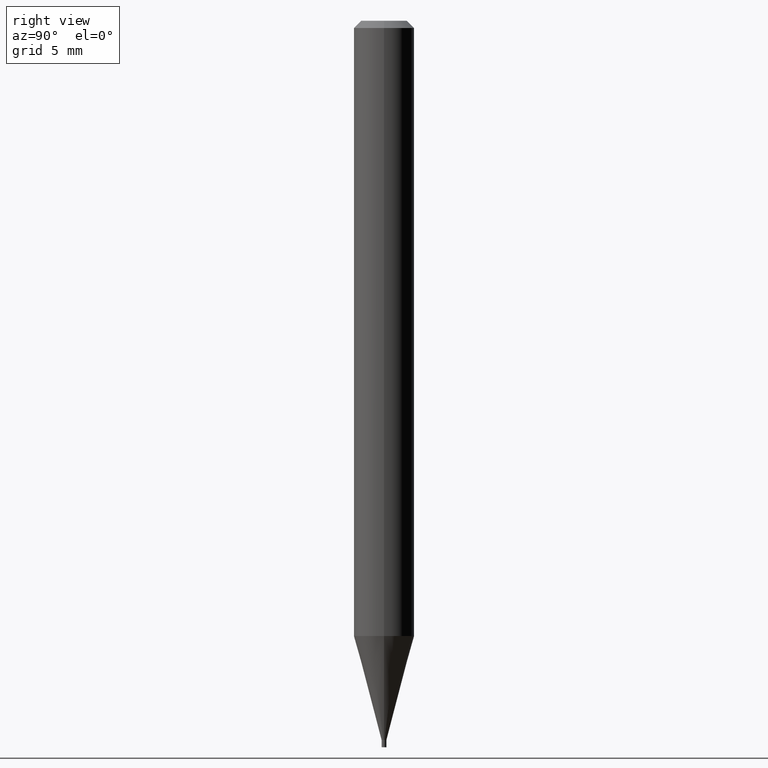
[diagram: clean part render]
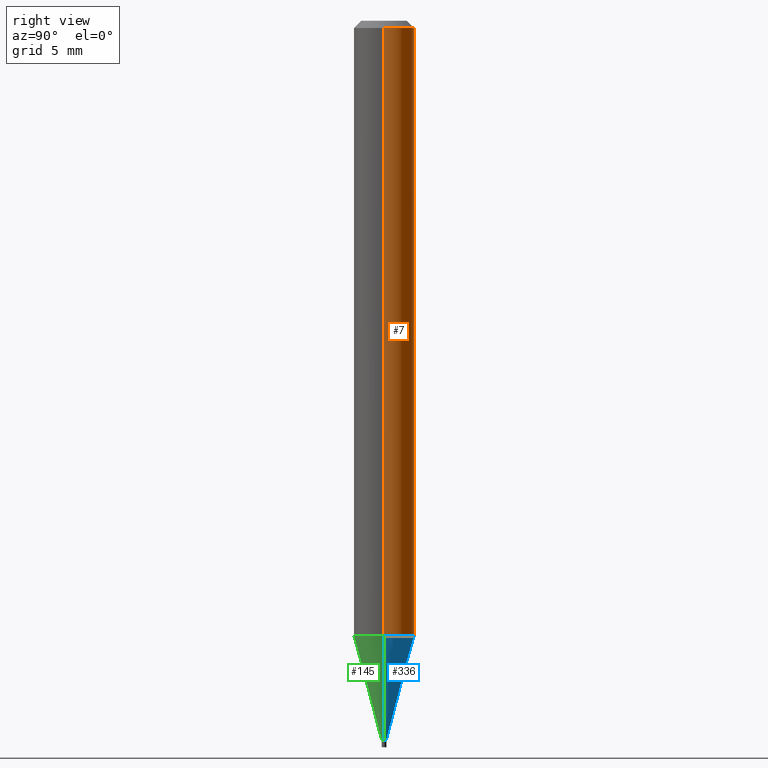
[diagram: same view with three faces highlighted in distinct colors, each labeled with its STEP entity id]
A machine part, right view with three faces highlighted in distinct colors.
Their STEP definitions:

[orange] entity #7 — the highlighted cylindrical surface (edge-blend (fillet) strip) has radius 1.5875 mm, axis along (-0, 0, 1).
#6 = VECTOR ( 'NONE', #371, 39.37007874015748143 ) ;
#7 = ADVANCED_FACE ( 'NONE', ( #281 ), #315, .T. ) ;
#8 = VERTEX_POINT ( 'NONE', #418 ) ;
#24 = AXIS2_PLACEMENT_3D ( 'NONE', #395, #402, #77 ) ;
#46 = CIRCLE ( 'NONE', #369, 0.06250000000000000000 ) ;
#49 = ORIENTED_EDGE ( 'NONE', *, *, #185, .F. ) ;
#66 = CARTESIAN_POINT ( 'NONE',  ( 0.000000000000000000, 0.000000000000000000, 0.000000000000000000 ) ) ;
#77 = DIRECTION ( 'NONE',  ( 1.000000000000000000, -6.982962677686266711E-15, 0.000000000000000000 ) ) ;
#86 = VERTEX_POINT ( 'NONE', #245 ) ;
#146 = EDGE_CURVE ( 'NONE', #179, #8, #267, .T. ) ;
#153 = CARTESIAN_POINT ( 'NONE',  ( 3.106740881786981637E-29, -4.435602607543199263E-15, -1.270407078564789183 ) ) ;
#164 = CARTESIAN_POINT ( 'NONE',  ( -0.06250000000000000000, 4.440892098500626162E-16, -3.074334431409316114E-30 ) ) ;
#167 = ORIENTED_EDGE ( 'NONE', *, *, #368, .F. ) ;
#178 = CIRCLE ( 'NONE', #24, 0.06250000000000000000 ) ;
#179 = VERTEX_POINT ( 'NONE', #251 ) ;
#185 = EDGE_CURVE ( 'NONE', #86, #8, #178, .T. ) ;
#197 = EDGE_CURVE ( 'NONE', #300, #179, #46, .T. ) ;
#216 = DIRECTION ( 'NONE',  ( 1.000000000000000000, -6.982962677686266711E-15, 4.876176775795935793E-29 ) ) ;
#226 = ORIENTED_EDGE ( 'NONE', *, *, #146, .T. ) ;
#245 = CARTESIAN_POINT ( 'NONE',  ( 0.06250000000000000000, -4.888073874380388472E-16, -0.01499999999999999944 ) ) ;
#251 = CARTESIAN_POINT ( 'NONE',  ( -0.06249999999999999306, -3.991513397693135858E-15, -1.270407078564789183 ) ) ;
#259 = AXIS2_PLACEMENT_3D ( 'NONE', #66, #455, #216 ) ;
#267 = LINE ( 'NONE', #164, #6 ) ;
#281 = FACE_OUTER_BOUND ( 'NONE', #298, .T. ) ;
#295 = DIRECTION ( 'NONE',  ( -2.445468806185136597E-29, 3.491481338843145583E-15, 1.000000000000000000 ) ) ;
#298 = EDGE_LOOP ( 'NONE', ( #404, #226, #49, #167 ) ) ;
#300 = VERTEX_POINT ( 'NONE', #339 ) ;
#315 = CYLINDRICAL_SURFACE ( 'NONE', #259, 0.06250000000000000000 ) ;
#319 = LINE ( 'NONE', #459, #374 ) ;
#339 = CARTESIAN_POINT ( 'NONE',  ( 0.06249999999999999306, -4.872037774898590932E-15, -1.270407078564789183 ) ) ;
#368 = EDGE_CURVE ( 'NONE', #300, #86, #319, .T. ) ;
#369 = AXIS2_PLACEMENT_3D ( 'NONE', #153, #295, #435 ) ;
#371 = DIRECTION ( 'NONE',  ( -2.445468806185136877E-29, 3.491481338843145188E-15, 1.000000000000000000 ) ) ;
#374 = VECTOR ( 'NONE', #416, 39.37007874015748143 ) ;
#395 = CARTESIAN_POINT ( 'NONE',  ( 3.668203209277705088E-31, -5.237222008264718399E-17, -0.01499999999999999944 ) ) ;
#402 = DIRECTION ( 'NONE',  ( -2.445468806185136597E-29, 3.491481338843145583E-15, 1.000000000000000000 ) ) ;
#404 = ORIENTED_EDGE ( 'NONE', *, *, #197, .T. ) ;
#416 = DIRECTION ( 'NONE',  ( -2.445468806185136877E-29, 3.491481338843145188E-15, 1.000000000000000000 ) ) ;
#418 = CARTESIAN_POINT ( 'NONE',  ( -0.06250000000000000000, -1.799898203962860752E-15, -0.01499999999999999944 ) ) ;
#435 = DIRECTION ( 'NONE',  ( 1.000000000000000000, -6.982962677686262766E-15, 0.000000000000000000 ) ) ;
#455 = DIRECTION ( 'NONE',  ( -2.445468806185136597E-29, 3.491481338843145583E-15, 1.000000000000000000 ) ) ;
#459 = CARTESIAN_POINT ( 'NONE',  ( 0.06250000000000000000, -4.364351673553916694E-16, 3.047610484872459871E-30 ) ) ;

[blue] entity #336 — the highlighted conical surface has half-angle 15 deg.
#29 = CARTESIAN_POINT ( 'NONE',  ( -0.004999999999999651425, -5.149322651394068818E-15, -1.485000000000000098 ) ) ;
#39 = DIRECTION ( 'NONE',  ( 1.000000000000000000, -6.982962677686237523E-15, 0.000000000000000000 ) ) ;
#46 = CIRCLE ( 'NONE', #369, 0.06250000000000000000 ) ;
#62 = CARTESIAN_POINT ( 'NONE',  ( 0.004999999999999651425, -5.219764601570499986E-15, -1.485000000000000098 ) ) ;
#82 = EDGE_CURVE ( 'NONE', #376, #224, #420, .T. ) ;
#112 = CONICAL_SURFACE ( 'NONE', #430, 0.004999999999999651425, 0.2617993877991502960 ) ;
#121 = AXIS2_PLACEMENT_3D ( 'NONE', #193, #147, #39 ) ;
#131 = VECTOR ( 'NONE', #141, 39.37007874015748143 ) ;
#139 = DIRECTION ( 'NONE',  ( -0.2588190451025215721, 5.211531920934551831E-15, 0.9659258262890679791 ) ) ;
#141 = DIRECTION ( 'NONE',  ( 0.2588190451025215721, 1.565188264969619995E-15, 0.9659258262890679791 ) ) ;
#147 = DIRECTION ( 'NONE',  ( -2.445468806185136597E-29, 3.491481338843145583E-15, 1.000000000000000000 ) ) ;
#153 = CARTESIAN_POINT ( 'NONE',  ( 3.106740881786981637E-29, -4.435602607543199263E-15, -1.270407078564789183 ) ) ;
#162 = ORIENTED_EDGE ( 'NONE', *, *, #82, .T. ) ;
#179 = VERTEX_POINT ( 'NONE', #251 ) ;
#193 = CARTESIAN_POINT ( 'NONE',  ( 3.631521177184928138E-29, -5.184849788182071492E-15, -1.485000000000000098 ) ) ;
#197 = EDGE_CURVE ( 'NONE', #300, #179, #46, .T. ) ;
#214 = VECTOR ( 'NONE', #139, 39.37007874015748143 ) ;
#224 = VERTEX_POINT ( 'NONE', #382 ) ;
#246 = CARTESIAN_POINT ( 'NONE',  ( 3.631521177184928138E-29, -5.184849788182071492E-15, -1.485000000000000098 ) ) ;
#251 = CARTESIAN_POINT ( 'NONE',  ( -0.06249999999999999306, -3.991513397693135858E-15, -1.270407078564789183 ) ) ;
#261 = ORIENTED_EDGE ( 'NONE', *, *, #197, .F. ) ;
#288 = FACE_OUTER_BOUND ( 'NONE', #405, .T. ) ;
#295 = DIRECTION ( 'NONE',  ( -2.445468806185136597E-29, 3.491481338843145583E-15, 1.000000000000000000 ) ) ;
#300 = VERTEX_POINT ( 'NONE', #339 ) ;
#314 = LINE ( 'NONE', #317, #131 ) ;
#317 = CARTESIAN_POINT ( 'NONE',  ( 0.004999999999999651425, -5.219764601570499986E-15, -1.485000000000000098 ) ) ;
#324 = DIRECTION ( 'NONE',  ( -2.445468806185136597E-29, 3.491481338843145583E-15, 1.000000000000000000 ) ) ;
#336 = ADVANCED_FACE ( 'NONE', ( #288 ), #112, .T. ) ;
#337 = ORIENTED_EDGE ( 'NONE', *, *, #424, .F. ) ;
#339 = CARTESIAN_POINT ( 'NONE',  ( 0.06249999999999999306, -4.872037774898590932E-15, -1.270407078564789183 ) ) ;
#369 = AXIS2_PLACEMENT_3D ( 'NONE', #153, #295, #435 ) ;
#376 = VERTEX_POINT ( 'NONE', #62 ) ;
#382 = CARTESIAN_POINT ( 'NONE',  ( -0.004999999999999651425, -4.570418024543603127E-15, -1.485000000000000098 ) ) ;
#384 = LINE ( 'NONE', #29, #214 ) ;
#405 = EDGE_LOOP ( 'NONE', ( #162, #451, #261, #337 ) ) ;
#413 = EDGE_CURVE ( 'NONE', #224, #179, #384, .T. ) ;
#420 = CIRCLE ( 'NONE', #121, 0.004999999999999651425 ) ;
#424 = EDGE_CURVE ( 'NONE', #376, #300, #314, .T. ) ;
#427 = DIRECTION ( 'NONE',  ( 1.000000000000000000, -6.982962677686237523E-15, 0.000000000000000000 ) ) ;
#430 = AXIS2_PLACEMENT_3D ( 'NONE', #246, #324, #427 ) ;
#435 = DIRECTION ( 'NONE',  ( 1.000000000000000000, -6.982962677686262766E-15, 0.000000000000000000 ) ) ;
#451 = ORIENTED_EDGE ( 'NONE', *, *, #413, .T. ) ;

[green] entity #145 — the highlighted conical surface has half-angle 15 deg.
#9 = EDGE_CURVE ( 'NONE', #179, #300, #91, .T. ) ;
#18 = CARTESIAN_POINT ( 'NONE',  ( 3.631521177184928138E-29, -5.184849788182071492E-15, -1.485000000000000098 ) ) ;
#27 = CARTESIAN_POINT ( 'NONE',  ( 3.106740881786981637E-29, -4.435602607543199263E-15, -1.270407078564789183 ) ) ;
#29 = CARTESIAN_POINT ( 'NONE',  ( -0.004999999999999651425, -5.149322651394068818E-15, -1.485000000000000098 ) ) ;
#31 = DIRECTION ( 'NONE',  ( -2.445468806185136597E-29, 3.491481338843145583E-15, 1.000000000000000000 ) ) ;
#34 = AXIS2_PLACEMENT_3D ( 'NONE', #27, #31, #279 ) ;
#52 = ORIENTED_EDGE ( 'NONE', *, *, #233, .T. ) ;
#62 = CARTESIAN_POINT ( 'NONE',  ( 0.004999999999999651425, -5.219764601570499986E-15, -1.485000000000000098 ) ) ;
#79 = DIRECTION ( 'NONE',  ( 1.000000000000000000, -6.982962677686237523E-15, 0.000000000000000000 ) ) ;
#91 = CIRCLE ( 'NONE', #34, 0.06250000000000000000 ) ;
#117 = EDGE_LOOP ( 'NONE', ( #397, #52, #340, #409 ) ) ;
#131 = VECTOR ( 'NONE', #141, 39.37007874015748143 ) ;
#135 = DIRECTION ( 'NONE',  ( 1.000000000000000000, -6.982962677686237523E-15, 0.000000000000000000 ) ) ;
#139 = DIRECTION ( 'NONE',  ( -0.2588190451025215721, 5.211531920934551831E-15, 0.9659258262890679791 ) ) ;
#141 = DIRECTION ( 'NONE',  ( 0.2588190451025215721, 1.565188264969619995E-15, 0.9659258262890679791 ) ) ;
#145 = ADVANCED_FACE ( 'NONE', ( #200 ), #456, .T. ) ;
#179 = VERTEX_POINT ( 'NONE', #251 ) ;
#200 = FACE_OUTER_BOUND ( 'NONE', #117, .T. ) ;
#214 = VECTOR ( 'NONE', #139, 39.37007874015748143 ) ;
#224 = VERTEX_POINT ( 'NONE', #382 ) ;
#225 = CIRCLE ( 'NONE', #353, 0.004999999999999651425 ) ;
#233 = EDGE_CURVE ( 'NONE', #224, #376, #225, .T. ) ;
#251 = CARTESIAN_POINT ( 'NONE',  ( -0.06249999999999999306, -3.991513397693135858E-15, -1.270407078564789183 ) ) ;
#274 = AXIS2_PLACEMENT_3D ( 'NONE', #328, #343, #79 ) ;
#279 = DIRECTION ( 'NONE',  ( 1.000000000000000000, -6.982962677686262766E-15, 0.000000000000000000 ) ) ;
#300 = VERTEX_POINT ( 'NONE', #339 ) ;
#311 = DIRECTION ( 'NONE',  ( -2.445468806185136597E-29, 3.491481338843145583E-15, 1.000000000000000000 ) ) ;
#314 = LINE ( 'NONE', #317, #131 ) ;
#317 = CARTESIAN_POINT ( 'NONE',  ( 0.004999999999999651425, -5.219764601570499986E-15, -1.485000000000000098 ) ) ;
#328 = CARTESIAN_POINT ( 'NONE',  ( 3.631521177184928138E-29, -5.184849788182071492E-15, -1.485000000000000098 ) ) ;
#339 = CARTESIAN_POINT ( 'NONE',  ( 0.06249999999999999306, -4.872037774898590932E-15, -1.270407078564789183 ) ) ;
#340 = ORIENTED_EDGE ( 'NONE', *, *, #424, .T. ) ;
#343 = DIRECTION ( 'NONE',  ( -2.445468806185136597E-29, 3.491481338843145583E-15, 1.000000000000000000 ) ) ;
#353 = AXIS2_PLACEMENT_3D ( 'NONE', #18, #311, #135 ) ;
#376 = VERTEX_POINT ( 'NONE', #62 ) ;
#382 = CARTESIAN_POINT ( 'NONE',  ( -0.004999999999999651425, -4.570418024543603127E-15, -1.485000000000000098 ) ) ;
#384 = LINE ( 'NONE', #29, #214 ) ;
#397 = ORIENTED_EDGE ( 'NONE', *, *, #413, .F. ) ;
#409 = ORIENTED_EDGE ( 'NONE', *, *, #9, .F. ) ;
#413 = EDGE_CURVE ( 'NONE', #224, #179, #384, .T. ) ;
#424 = EDGE_CURVE ( 'NONE', #376, #300, #314, .T. ) ;
#456 = CONICAL_SURFACE ( 'NONE', #274, 0.004999999999999651425, 0.2617993877991502960 ) ;